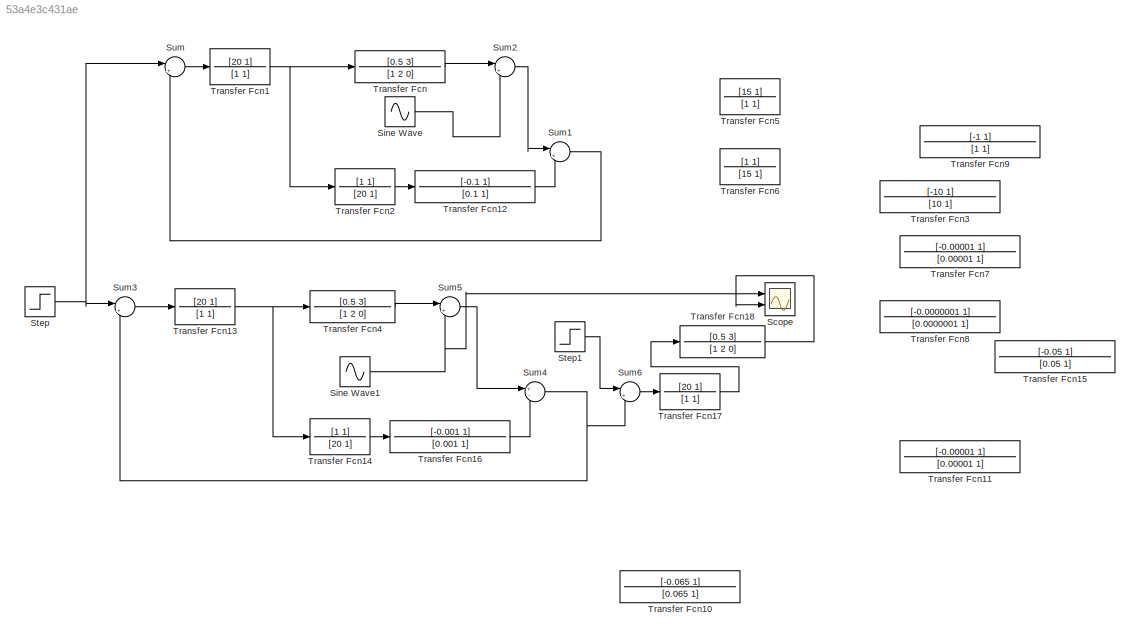
MODEL slx_53a4e3c431ae
KIND model
CONFIG AbsTol = auto
CONFIG EnableMultiTasking = off
CONFIG FixedStep = 0.0001
CONFIG MaxStep = auto
CONFIG MinStep = auto
CONFIG RelTol = 1e-5
CONFIG SampleTimeConstraint = Unconstrained
CONFIG Solver = FixedStepAuto
CONFIG SolverName = FixedStepAuto
CONFIG StartTime = 0.0
CONFIG StopTime = 10
BLOCK [Scope] Scope
  Floating = off
  NumInputPorts = 2
  Ports = [2]
  ScopeSpecificationString = Simulink.scopes.TimeScopeBlockCfg('CurrentConfiguration', extmgr.ConfigurationSet(extmgr.Configuration('Core','General UI',true),extmgr.Configuration('Core','Source UI',true),extmgr.Configuration('Sources','WiredSimulink',true),extmgr.Configuration('Visuals','Time Domain',true,'SerializedDisplays',{struct('MinYLimReal','-0.35179','MaxYLimReal','2.1661','YLabelReal','','MinYLimMag','0.00000','MaxYL...<+1454ch>
BLOCK [Sin] Sine Wave
  Amplitude = 0.1
  Frequency = 10
  Phase = 2.7
  Ports = [0, 1]
  SampleTime = 0
BLOCK [Sin] Sine Wave1
  Amplitude = 0.1
  Frequency = 10
  Phase = 2.7
  Ports = [0, 1]
  SampleTime = 0
BLOCK [Step] Step
  Before = 1
  SampleTime = 0
BLOCK [Step] Step1
  Before = 1
  SampleTime = 0
BLOCK [Sum] Sum
  IconShape = round
  InputSameDT = off
  Inputs = |+-
  OutDataTypeStr = Inherit: Inherit via internal rule
  Ports = [2, 1]
  SaturateOnIntegerOverflow = off
BLOCK [Sum] Sum1
  IconShape = round
  InputSameDT = off
  Inputs = |+-
  OutDataTypeStr = Inherit: Inherit via internal rule
  Ports = [2, 1]
  SaturateOnIntegerOverflow = off
BLOCK [Sum] Sum2
  IconShape = round
  InputSameDT = off
  Inputs = |++
  OutDataTypeStr = Inherit: Inherit via internal rule
  Ports = [2, 1]
  SaturateOnIntegerOverflow = off
BLOCK [Sum] Sum3
  IconShape = round
  InputSameDT = off
  Inputs = |+-
  OutDataTypeStr = Inherit: Inherit via internal rule
  Ports = [2, 1]
  SaturateOnIntegerOverflow = off
BLOCK [Sum] Sum4
  IconShape = round
  InputSameDT = off
  Inputs = +-
  OutDataTypeStr = Inherit: Inherit via internal rule
  Ports = [2, 1]
  SaturateOnIntegerOverflow = off
BLOCK [Sum] Sum5
  IconShape = round
  InputSameDT = off
  Inputs = |++
  OutDataTypeStr = Inherit: Inherit via internal rule
  Ports = [2, 1]
  SaturateOnIntegerOverflow = off
BLOCK [Sum] Sum6
  IconShape = round
  InputSameDT = off
  Inputs = |+-
  OutDataTypeStr = Inherit: Inherit via internal rule
  Ports = [2, 1]
  SaturateOnIntegerOverflow = off
BLOCK [TransferFcn] Transfer Fcn
  Denominator = [1 2 0]
  Numerator = [0.5 3]
BLOCK [TransferFcn] Transfer Fcn1
  Denominator = [1 1]
  Numerator = [20 1]
BLOCK [TransferFcn] Transfer Fcn10
  Denominator = [0.065 1]
  Numerator = [-0.065 1]
BLOCK [TransferFcn] Transfer Fcn11
  Denominator = [0.00001 1]
  Numerator = [-0.00001 1]
BLOCK [TransferFcn] Transfer Fcn12
  Denominator = [0.1 1]
  Numerator = [-0.1 1]
BLOCK [TransferFcn] Transfer Fcn13
  Denominator = [1 1]
  Numerator = [20 1]
BLOCK [TransferFcn] Transfer Fcn14
  Denominator = [20 1]
  Numerator = [1 1]
BLOCK [TransferFcn] Transfer Fcn15
  Denominator = [0.05 1]
  Numerator = [-0.05 1]
BLOCK [TransferFcn] Transfer Fcn16
  Denominator = [0.001 1]
  Numerator = [-0.001 1]
BLOCK [TransferFcn] Transfer Fcn17
  Denominator = [1 1]
  Numerator = [20 1]
BLOCK [TransferFcn] Transfer Fcn18
  Denominator = [1 2 0]
  Numerator = [0.5 3]
BLOCK [TransferFcn] Transfer Fcn2
  Denominator = [20 1]
  Numerator = [1 1]
BLOCK [TransferFcn] Transfer Fcn3
  Denominator = [10 1]
  Numerator = [-10 1]
BLOCK [TransferFcn] Transfer Fcn4
  Denominator = [1 2 0]
  Numerator = [0.5 3]
BLOCK [TransferFcn] Transfer Fcn5
  Denominator = [1 1]
  Numerator = [15 1]
BLOCK [TransferFcn] Transfer Fcn6
  Denominator = [15 1]
  Numerator = [1 1]
BLOCK [TransferFcn] Transfer Fcn7
  Denominator = [0.00001 1]
  Numerator = [-0.00001 1]
BLOCK [TransferFcn] Transfer Fcn8
  Denominator = [0.0000001 1]
  Numerator = [-0.0000001 1]
BLOCK [TransferFcn] Transfer Fcn9
  Denominator = [1 1]
  Numerator = [-1 1]
NET Sine Wave1:1 -> Scope:1, Sum5:2
LINE Sine Wave:1 -> Sum2:2
LINE Step1:1 -> Sum6:1
NET Step:1 -> Sum3:1, Sum:1
LINE Sum1:1 -> Sum:2
LINE Sum2:1 -> Sum1:1
LINE Sum3:1 -> Transfer Fcn13:1
NET Sum4:1 -> Sum3:2, Sum6:2
LINE Sum5:1 -> Sum4:1
LINE Sum6:1 -> Transfer Fcn17:1
LINE Sum:1 -> Transfer Fcn1:1
LINE Transfer Fcn12:1 -> Sum1:2
NET Transfer Fcn13:1 -> Transfer Fcn14:1, Transfer Fcn4:1
LINE Transfer Fcn14:1 -> Transfer Fcn16:1
LINE Transfer Fcn16:1 -> Sum4:2
LINE Transfer Fcn17:1 -> Transfer Fcn18:1
LINE Transfer Fcn18:1 -> Scope:2
NET Transfer Fcn1:1 -> Transfer Fcn2:1, Transfer Fcn:1
LINE Transfer Fcn2:1 -> Transfer Fcn12:1
LINE Transfer Fcn4:1 -> Sum5:1
LINE Transfer Fcn:1 -> Sum2:1
note: NET lines group one-source signal fan-out (src -> all destinations, sorted); 1:1 wires keep LINE
